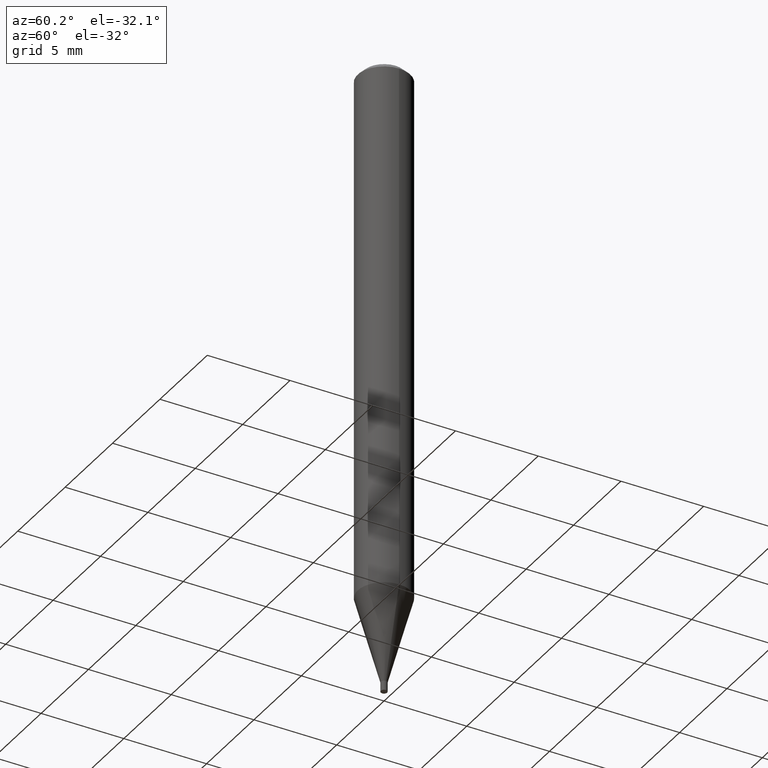
[diagram: clean part render]
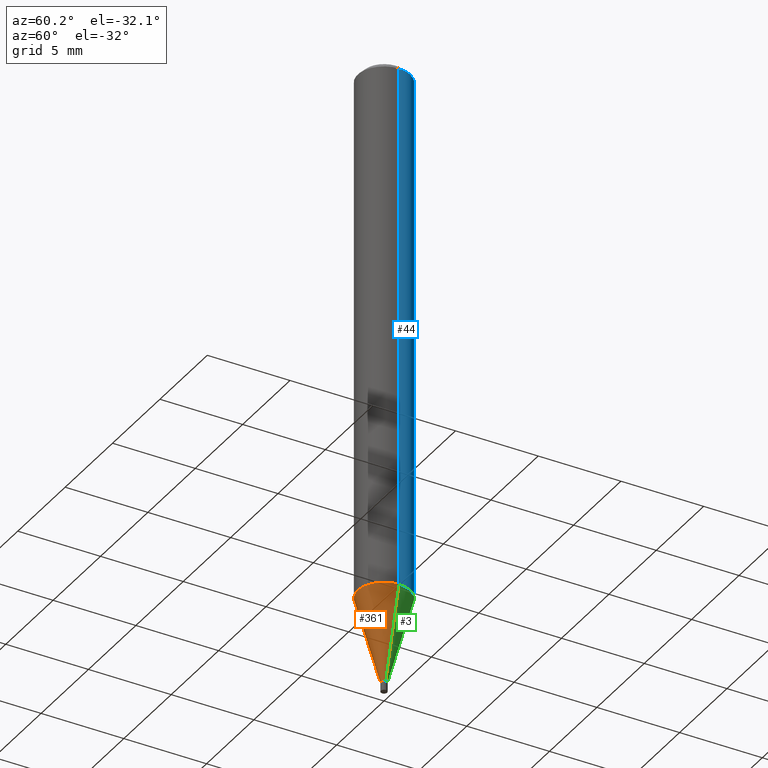
[diagram: same view with three faces highlighted in distinct colors, each labeled with its STEP entity id]
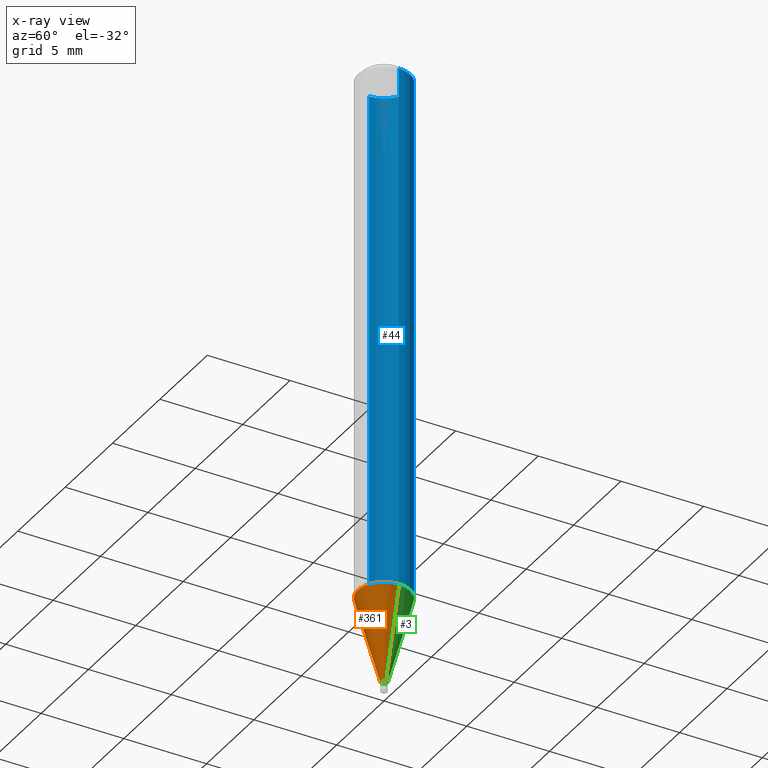
[diagram: x-ray of the same camera — body ghosted, the three highlighted faces saturated]
A machine part, auxiliary view with three faces highlighted in distinct colors.
The next image is the same camera in x-ray (body ghosted, the three faces saturated) — at least one of them is partly hidden behind the body in this view.
Their STEP definitions:

[orange] entity #361 — the highlighted conical surface has half-angle 15 deg.
#16 = CARTESIAN_POINT ( 'NONE',  ( -0.007500000000000468098, -5.105372972958736250E-15, -1.477500000000000036 ) ) ;
#20 = CIRCLE ( 'NONE', #407, 0.06250000000000000000 ) ;
#25 = ORIENTED_EDGE ( 'NONE', *, *, #435, .F. ) ;
#26 = CARTESIAN_POINT ( 'NONE',  ( 0.06250000000000001388, -4.878427629232878036E-15, -1.272237205583713893 ) ) ;
#49 = DIRECTION ( 'NONE',  ( 1.000000000000000000, -6.982962677686220168E-15, 0.000000000000000000 ) ) ;
#54 = FACE_OUTER_BOUND ( 'NONE', #72, .T. ) ;
#65 = CONICAL_SURFACE ( 'NONE', #394, 0.007500000000000468098, 0.2617993877991498519 ) ;
#71 = CIRCLE ( 'NONE', #329, 0.007500000000000468098 ) ;
#72 = EDGE_LOOP ( 'NONE', ( #25, #182, #321, #245 ) ) ;
#81 = CARTESIAN_POINT ( 'NONE',  ( 3.613180161138538918E-29, -5.158663678140747361E-15, -1.477500000000000036 ) ) ;
#126 = DIRECTION ( 'NONE',  ( -2.445468806185136597E-29, 3.491481338843145583E-15, 1.000000000000000000 ) ) ;
#133 = DIRECTION ( 'NONE',  ( 1.000000000000000000, -6.982962677686262766E-15, 0.000000000000000000 ) ) ;
#164 = VERTEX_POINT ( 'NONE', #211 ) ;
#178 = CARTESIAN_POINT ( 'NONE',  ( 3.111216400323118995E-29, -4.441992461877487944E-15, -1.272237205583713893 ) ) ;
#182 = ORIENTED_EDGE ( 'NONE', *, *, #390, .T. ) ;
#187 = CARTESIAN_POINT ( 'NONE',  ( -0.06250000000000001388, -3.997903252027424539E-15, -1.272237205583713893 ) ) ;
#201 = DIRECTION ( 'NONE',  ( 1.000000000000000000, -6.982962677686220168E-15, 0.000000000000000000 ) ) ;
#211 = CARTESIAN_POINT ( 'NONE',  ( 0.007500000000000468098, -5.211035898223397201E-15, -1.477500000000000036 ) ) ;
#212 = VERTEX_POINT ( 'NONE', #213 ) ;
#213 = CARTESIAN_POINT ( 'NONE',  ( -0.007500000000000468098, -4.551638112493080789E-15, -1.477500000000000036 ) ) ;
#229 = DIRECTION ( 'NONE',  ( -2.445468806185136597E-29, 3.491481338843145583E-15, 1.000000000000000000 ) ) ;
#231 = EDGE_CURVE ( 'NONE', #341, #237, #20, .T. ) ;
#237 = VERTEX_POINT ( 'NONE', #26 ) ;
#245 = ORIENTED_EDGE ( 'NONE', *, *, #231, .F. ) ;
#249 = VECTOR ( 'NONE', #337, 39.37007874015748854 ) ;
#266 = LINE ( 'NONE', #295, #432 ) ;
#295 = CARTESIAN_POINT ( 'NONE',  ( 0.007500000000000468098, -5.211035898223397201E-15, -1.477500000000000036 ) ) ;
#317 = DIRECTION ( 'NONE',  ( -2.445468806185136597E-29, 3.491481338843145583E-15, 1.000000000000000000 ) ) ;
#321 = ORIENTED_EDGE ( 'NONE', *, *, #375, .T. ) ;
#329 = AXIS2_PLACEMENT_3D ( 'NONE', #81, #229, #201 ) ;
#333 = LINE ( 'NONE', #16, #249 ) ;
#337 = DIRECTION ( 'NONE',  ( -0.2588190451025211281, 5.211531920934547886E-15, 0.9659258262890679791 ) ) ;
#341 = VERTEX_POINT ( 'NONE', #187 ) ;
#361 = ADVANCED_FACE ( 'NONE', ( #54 ), #65, .T. ) ;
#375 = EDGE_CURVE ( 'NONE', #164, #237, #266, .T. ) ;
#390 = EDGE_CURVE ( 'NONE', #212, #164, #71, .T. ) ;
#394 = AXIS2_PLACEMENT_3D ( 'NONE', #405, #126, #49 ) ;
#405 = CARTESIAN_POINT ( 'NONE',  ( 3.613180161138538918E-29, -5.158663678140747361E-15, -1.477500000000000036 ) ) ;
#407 = AXIS2_PLACEMENT_3D ( 'NONE', #178, #317, #133 ) ;
#411 = DIRECTION ( 'NONE',  ( 0.2588190451025211281, 1.565188264969622954E-15, 0.9659258262890679791 ) ) ;
#432 = VECTOR ( 'NONE', #411, 39.37007874015748854 ) ;
#435 = EDGE_CURVE ( 'NONE', #212, #341, #333, .T. ) ;

[blue] entity #44 — the highlighted cylindrical surface (edge-blend (fillet) strip) has radius 1.5875 mm, axis along (-0, 0, 1).
#5 = VECTOR ( 'NONE', #232, 39.37007874015748143 ) ;
#19 = AXIS2_PLACEMENT_3D ( 'NONE', #153, #258, #157 ) ;
#26 = CARTESIAN_POINT ( 'NONE',  ( 0.06250000000000001388, -4.878427629232878036E-15, -1.272237205583713893 ) ) ;
#44 = ADVANCED_FACE ( 'NONE', ( #326 ), #186, .T. ) ;
#50 = AXIS2_PLACEMENT_3D ( 'NONE', #101, #243, #314 ) ;
#75 = ORIENTED_EDGE ( 'NONE', *, *, #303, .T. ) ;
#78 = CIRCLE ( 'NONE', #284, 0.06250000000000000000 ) ;
#91 = EDGE_CURVE ( 'NONE', #341, #316, #254, .T. ) ;
#92 = LINE ( 'NONE', #128, #5 ) ;
#101 = CARTESIAN_POINT ( 'NONE',  ( 3.111216400323118995E-29, -4.441992461877487944E-15, -1.272237205583713893 ) ) ;
#105 = CARTESIAN_POINT ( 'NONE',  ( -0.06250000000000000000, -1.803093131130005093E-15, -0.01499999999999999944 ) ) ;
#113 = EDGE_CURVE ( 'NONE', #248, #316, #78, .T. ) ;
#128 = CARTESIAN_POINT ( 'NONE',  ( 0.06250000000000000000, -4.364351673553916694E-16, 3.047610484872459871E-30 ) ) ;
#152 = CARTESIAN_POINT ( 'NONE',  ( -0.06250000000000000000, 4.440892098500626162E-16, -3.074334431409316114E-30 ) ) ;
#153 = CARTESIAN_POINT ( 'NONE',  ( 0.000000000000000000, 0.000000000000000000, 0.000000000000000000 ) ) ;
#157 = DIRECTION ( 'NONE',  ( 1.000000000000000000, -6.982962677686266711E-15, 4.876176775795935793E-29 ) ) ;
#186 = CYLINDRICAL_SURFACE ( 'NONE', #19, 0.06250000000000000000 ) ;
#187 = CARTESIAN_POINT ( 'NONE',  ( -0.06250000000000001388, -3.997903252027424539E-15, -1.272237205583713893 ) ) ;
#189 = DIRECTION ( 'NONE',  ( -2.445468806185136877E-29, 3.491481338843145188E-15, 1.000000000000000000 ) ) ;
#195 = DIRECTION ( 'NONE',  ( -2.445468806185136597E-29, 3.491481338843145583E-15, 1.000000000000000000 ) ) ;
#232 = DIRECTION ( 'NONE',  ( -2.445468806185136877E-29, 3.491481338843145188E-15, 1.000000000000000000 ) ) ;
#237 = VERTEX_POINT ( 'NONE', #26 ) ;
#243 = DIRECTION ( 'NONE',  ( -2.445468806185136597E-29, 3.491481338843145583E-15, 1.000000000000000000 ) ) ;
#244 = ORIENTED_EDGE ( 'NONE', *, *, #91, .T. ) ;
#248 = VERTEX_POINT ( 'NONE', #306 ) ;
#254 = LINE ( 'NONE', #152, #431 ) ;
#258 = DIRECTION ( 'NONE',  ( -2.445468806185136597E-29, 3.491481338843145583E-15, 1.000000000000000000 ) ) ;
#276 = EDGE_LOOP ( 'NONE', ( #75, #244, #305, #454 ) ) ;
#284 = AXIS2_PLACEMENT_3D ( 'NONE', #438, #195, #443 ) ;
#303 = EDGE_CURVE ( 'NONE', #237, #341, #308, .T. ) ;
#305 = ORIENTED_EDGE ( 'NONE', *, *, #113, .F. ) ;
#306 = CARTESIAN_POINT ( 'NONE',  ( 0.06250000000000000000, -4.888073874380388472E-16, -0.01499999999999999944 ) ) ;
#308 = CIRCLE ( 'NONE', #50, 0.06250000000000000000 ) ;
#314 = DIRECTION ( 'NONE',  ( 1.000000000000000000, -6.982962677686262766E-15, 0.000000000000000000 ) ) ;
#316 = VERTEX_POINT ( 'NONE', #105 ) ;
#326 = FACE_OUTER_BOUND ( 'NONE', #276, .T. ) ;
#341 = VERTEX_POINT ( 'NONE', #187 ) ;
#431 = VECTOR ( 'NONE', #189, 39.37007874015748143 ) ;
#437 = EDGE_CURVE ( 'NONE', #237, #248, #92, .T. ) ;
#438 = CARTESIAN_POINT ( 'NONE',  ( 3.668203209277705088E-31, -5.237222008264718399E-17, -0.01499999999999999944 ) ) ;
#443 = DIRECTION ( 'NONE',  ( 1.000000000000000000, -6.982962677686266711E-15, 0.000000000000000000 ) ) ;
#454 = ORIENTED_EDGE ( 'NONE', *, *, #437, .F. ) ;

[green] entity #3 — the highlighted conical surface has half-angle 15 deg.
#3 = ADVANCED_FACE ( 'NONE', ( #430 ), #123, .T. ) ;
#16 = CARTESIAN_POINT ( 'NONE',  ( -0.007500000000000468098, -5.105372972958736250E-15, -1.477500000000000036 ) ) ;
#26 = CARTESIAN_POINT ( 'NONE',  ( 0.06250000000000001388, -4.878427629232878036E-15, -1.272237205583713893 ) ) ;
#36 = DIRECTION ( 'NONE',  ( 1.000000000000000000, -6.982962677686220168E-15, 0.000000000000000000 ) ) ;
#46 = CARTESIAN_POINT ( 'NONE',  ( 3.613180161138538918E-29, -5.158663678140747361E-15, -1.477500000000000036 ) ) ;
#50 = AXIS2_PLACEMENT_3D ( 'NONE', #101, #243, #314 ) ;
#57 = ORIENTED_EDGE ( 'NONE', *, *, #459, .T. ) ;
#70 = CARTESIAN_POINT ( 'NONE',  ( 3.613180161138538918E-29, -5.158663678140747361E-15, -1.477500000000000036 ) ) ;
#101 = CARTESIAN_POINT ( 'NONE',  ( 3.111216400323118995E-29, -4.441992461877487944E-15, -1.272237205583713893 ) ) ;
#123 = CONICAL_SURFACE ( 'NONE', #383, 0.007500000000000468098, 0.2617993877991498519 ) ;
#125 = CIRCLE ( 'NONE', #384, 0.007500000000000468098 ) ;
#145 = ORIENTED_EDGE ( 'NONE', *, *, #375, .F. ) ;
#161 = DIRECTION ( 'NONE',  ( -2.445468806185136597E-29, 3.491481338843145583E-15, 1.000000000000000000 ) ) ;
#164 = VERTEX_POINT ( 'NONE', #211 ) ;
#183 = ORIENTED_EDGE ( 'NONE', *, *, #303, .F. ) ;
#187 = CARTESIAN_POINT ( 'NONE',  ( -0.06250000000000001388, -3.997903252027424539E-15, -1.272237205583713893 ) ) ;
#210 = EDGE_LOOP ( 'NONE', ( #57, #319, #183, #145 ) ) ;
#211 = CARTESIAN_POINT ( 'NONE',  ( 0.007500000000000468098, -5.211035898223397201E-15, -1.477500000000000036 ) ) ;
#212 = VERTEX_POINT ( 'NONE', #213 ) ;
#213 = CARTESIAN_POINT ( 'NONE',  ( -0.007500000000000468098, -4.551638112493080789E-15, -1.477500000000000036 ) ) ;
#237 = VERTEX_POINT ( 'NONE', #26 ) ;
#243 = DIRECTION ( 'NONE',  ( -2.445468806185136597E-29, 3.491481338843145583E-15, 1.000000000000000000 ) ) ;
#249 = VECTOR ( 'NONE', #337, 39.37007874015748854 ) ;
#266 = LINE ( 'NONE', #295, #432 ) ;
#295 = CARTESIAN_POINT ( 'NONE',  ( 0.007500000000000468098, -5.211035898223397201E-15, -1.477500000000000036 ) ) ;
#303 = EDGE_CURVE ( 'NONE', #237, #341, #308, .T. ) ;
#308 = CIRCLE ( 'NONE', #50, 0.06250000000000000000 ) ;
#314 = DIRECTION ( 'NONE',  ( 1.000000000000000000, -6.982962677686262766E-15, 0.000000000000000000 ) ) ;
#319 = ORIENTED_EDGE ( 'NONE', *, *, #435, .T. ) ;
#333 = LINE ( 'NONE', #16, #249 ) ;
#337 = DIRECTION ( 'NONE',  ( -0.2588190451025211281, 5.211531920934547886E-15, 0.9659258262890679791 ) ) ;
#341 = VERTEX_POINT ( 'NONE', #187 ) ;
#352 = DIRECTION ( 'NONE',  ( -2.445468806185136597E-29, 3.491481338843145583E-15, 1.000000000000000000 ) ) ;
#366 = DIRECTION ( 'NONE',  ( 1.000000000000000000, -6.982962677686220168E-15, 0.000000000000000000 ) ) ;
#375 = EDGE_CURVE ( 'NONE', #164, #237, #266, .T. ) ;
#383 = AXIS2_PLACEMENT_3D ( 'NONE', #70, #352, #36 ) ;
#384 = AXIS2_PLACEMENT_3D ( 'NONE', #46, #161, #366 ) ;
#411 = DIRECTION ( 'NONE',  ( 0.2588190451025211281, 1.565188264969622954E-15, 0.9659258262890679791 ) ) ;
#430 = FACE_OUTER_BOUND ( 'NONE', #210, .T. ) ;
#432 = VECTOR ( 'NONE', #411, 39.37007874015748854 ) ;
#435 = EDGE_CURVE ( 'NONE', #212, #341, #333, .T. ) ;
#459 = EDGE_CURVE ( 'NONE', #164, #212, #125, .T. ) ;